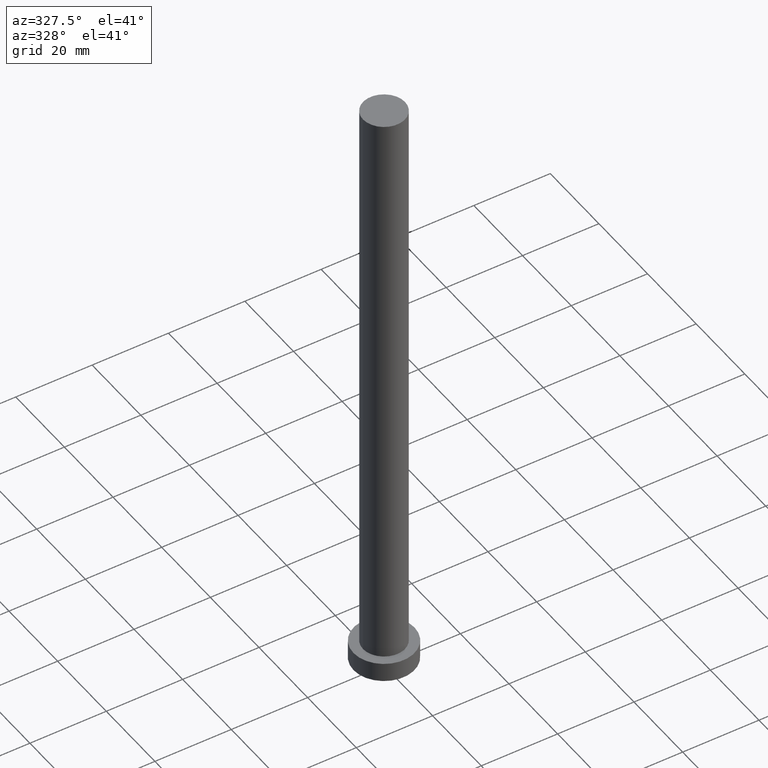
[diagram: clean part render]
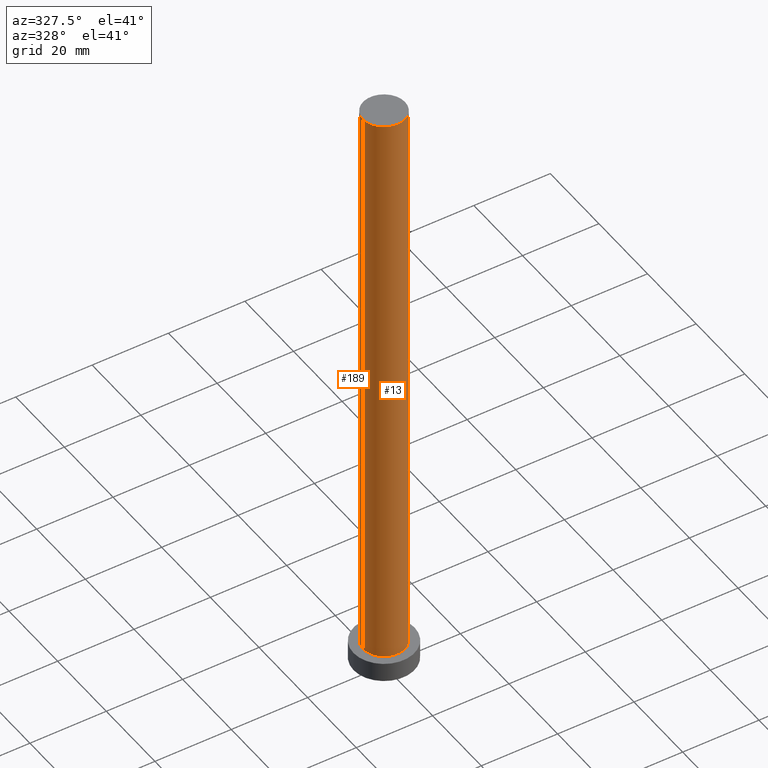
[diagram: same view with one multi-face feature highlighted, each face labeled with its STEP entity id]
A machine part, auxiliary view. The highlighted faces form ONE feature: a constant-radius fillet chain: 2 tangent blend faces with common blend radius 5.5 mm. The faces share edges in the B-rep.
Their STEP definitions:
[1] entity #189 (Cylinder):
#1 = VECTOR ( 'NONE', #64, 1000.000000000000000 ) ;
#2 = CARTESIAN_POINT ( 'NONE',  ( 0.000000000000000000, 0.000000000000000000, 160.0000000000000000 ) ) ;
#5 = CYLINDRICAL_SURFACE ( 'NONE', #35, 5.500000000000000000 ) ;
#21 = DIRECTION ( 'NONE',  ( 1.000000000000000000, 0.000000000000000000, 0.000000000000000000 ) ) ;
#28 = CIRCLE ( 'NONE', #96, 5.500000000000000000 ) ;
#32 = VERTEX_POINT ( 'NONE', #129 ) ;
#35 = AXIS2_PLACEMENT_3D ( 'NONE', #81, #195, #128 ) ;
#36 = VERTEX_POINT ( 'NONE', #100 ) ;
#43 = DIRECTION ( 'NONE',  ( 0.000000000000000000, 0.000000000000000000, 1.000000000000000000 ) ) ;
#62 = DIRECTION ( 'NONE',  ( 1.000000000000000000, 0.000000000000000000, 0.000000000000000000 ) ) ;
#64 = DIRECTION ( 'NONE',  ( -0.000000000000000000, -0.000000000000000000, -1.000000000000000000 ) ) ;
#71 = CARTESIAN_POINT ( 'NONE',  ( -5.500000000000000000, 0.000000000000000000, 160.0000000000000000 ) ) ;
#75 = VERTEX_POINT ( 'NONE', #179 ) ;
#81 = CARTESIAN_POINT ( 'NONE',  ( 0.000000000000000000, 0.000000000000000000, 160.0000000000000000 ) ) ;
#82 = EDGE_CURVE ( 'NONE', #36, #140, #199, .T. ) ;
#90 = EDGE_LOOP ( 'NONE', ( #93, #108, #121, #248 ) ) ;
#93 = ORIENTED_EDGE ( 'NONE', *, *, #114, .F. ) ;
#96 = AXIS2_PLACEMENT_3D ( 'NONE', #2, #200, #21 ) ;
#100 = CARTESIAN_POINT ( 'NONE',  ( 5.500000000000000000, 6.735557395310442023E-16, 5.000000000000000000 ) ) ;
#108 = ORIENTED_EDGE ( 'NONE', *, *, #172, .T. ) ;
#114 = EDGE_CURVE ( 'NONE', #75, #32, #28, .T. ) ;
#118 = VECTOR ( 'NONE', #160, 1000.000000000000000 ) ;
#121 = ORIENTED_EDGE ( 'NONE', *, *, #82, .T. ) ;
#128 = DIRECTION ( 'NONE',  ( -1.000000000000000000, 0.000000000000000000, 0.000000000000000000 ) ) ;
#129 = CARTESIAN_POINT ( 'NONE',  ( -5.500000000000000000, 0.000000000000000000, 160.0000000000000000 ) ) ;
#140 = VERTEX_POINT ( 'NONE', #241 ) ;
#157 = CARTESIAN_POINT ( 'NONE',  ( 5.500000000000000000, 6.735557395310442023E-16, 160.0000000000000000 ) ) ;
#160 = DIRECTION ( 'NONE',  ( -0.000000000000000000, -0.000000000000000000, -1.000000000000000000 ) ) ;
#172 = EDGE_CURVE ( 'NONE', #75, #36, #217, .T. ) ;
#176 = CARTESIAN_POINT ( 'NONE',  ( 0.000000000000000000, 0.000000000000000000, 5.000000000000000000 ) ) ;
#179 = CARTESIAN_POINT ( 'NONE',  ( 5.500000000000000000, 6.735557395310442023E-16, 160.0000000000000000 ) ) ;
#182 = FACE_OUTER_BOUND ( 'NONE', #90, .T. ) ;
#187 = LINE ( 'NONE', #71, #118 ) ;
#189 = ADVANCED_FACE ( 'NONE', ( #182 ), #5, .T. ) ;
#195 = DIRECTION ( 'NONE',  ( -0.000000000000000000, -0.000000000000000000, -1.000000000000000000 ) ) ;
#199 = CIRCLE ( 'NONE', #230, 5.500000000000000000 ) ;
#200 = DIRECTION ( 'NONE',  ( 0.000000000000000000, 0.000000000000000000, 1.000000000000000000 ) ) ;
#217 = LINE ( 'NONE', #157, #1 ) ;
#223 = EDGE_CURVE ( 'NONE', #32, #140, #187, .T. ) ;
#230 = AXIS2_PLACEMENT_3D ( 'NONE', #176, #43, #62 ) ;
#241 = CARTESIAN_POINT ( 'NONE',  ( -5.500000000000000000, 0.000000000000000000, 5.000000000000000000 ) ) ;
#248 = ORIENTED_EDGE ( 'NONE', *, *, #223, .F. ) ;
[2] entity #13 (Cylinder):
#1 = VECTOR ( 'NONE', #64, 1000.000000000000000 ) ;
#13 = ADVANCED_FACE ( 'NONE', ( #50 ), #232, .T. ) ;
#17 = EDGE_LOOP ( 'NONE', ( #193, #122, #112, #94 ) ) ;
#27 = DIRECTION ( 'NONE',  ( 1.000000000000000000, 0.000000000000000000, 0.000000000000000000 ) ) ;
#32 = VERTEX_POINT ( 'NONE', #129 ) ;
#36 = VERTEX_POINT ( 'NONE', #100 ) ;
#42 = DIRECTION ( 'NONE',  ( 0.000000000000000000, 0.000000000000000000, 1.000000000000000000 ) ) ;
#50 = FACE_OUTER_BOUND ( 'NONE', #17, .T. ) ;
#51 = EDGE_CURVE ( 'NONE', #32, #75, #70, .T. ) ;
#58 = CARTESIAN_POINT ( 'NONE',  ( 0.000000000000000000, 0.000000000000000000, 160.0000000000000000 ) ) ;
#64 = DIRECTION ( 'NONE',  ( -0.000000000000000000, -0.000000000000000000, -1.000000000000000000 ) ) ;
#68 = DIRECTION ( 'NONE',  ( 0.000000000000000000, 0.000000000000000000, 1.000000000000000000 ) ) ;
#70 = CIRCLE ( 'NONE', #243, 5.500000000000000000 ) ;
#71 = CARTESIAN_POINT ( 'NONE',  ( -5.500000000000000000, 0.000000000000000000, 160.0000000000000000 ) ) ;
#75 = VERTEX_POINT ( 'NONE', #179 ) ;
#83 = AXIS2_PLACEMENT_3D ( 'NONE', #164, #68, #27 ) ;
#87 = CIRCLE ( 'NONE', #83, 5.500000000000000000 ) ;
#94 = ORIENTED_EDGE ( 'NONE', *, *, #247, .T. ) ;
#99 = DIRECTION ( 'NONE',  ( -1.000000000000000000, 0.000000000000000000, 0.000000000000000000 ) ) ;
#100 = CARTESIAN_POINT ( 'NONE',  ( 5.500000000000000000, 6.735557395310442023E-16, 5.000000000000000000 ) ) ;
#105 = CARTESIAN_POINT ( 'NONE',  ( 0.000000000000000000, 0.000000000000000000, 160.0000000000000000 ) ) ;
#112 = ORIENTED_EDGE ( 'NONE', *, *, #223, .T. ) ;
#118 = VECTOR ( 'NONE', #160, 1000.000000000000000 ) ;
#122 = ORIENTED_EDGE ( 'NONE', *, *, #51, .F. ) ;
#129 = CARTESIAN_POINT ( 'NONE',  ( -5.500000000000000000, 0.000000000000000000, 160.0000000000000000 ) ) ;
#140 = VERTEX_POINT ( 'NONE', #241 ) ;
#157 = CARTESIAN_POINT ( 'NONE',  ( 5.500000000000000000, 6.735557395310442023E-16, 160.0000000000000000 ) ) ;
#158 = AXIS2_PLACEMENT_3D ( 'NONE', #58, #159, #99 ) ;
#159 = DIRECTION ( 'NONE',  ( -0.000000000000000000, -0.000000000000000000, -1.000000000000000000 ) ) ;
#160 = DIRECTION ( 'NONE',  ( -0.000000000000000000, -0.000000000000000000, -1.000000000000000000 ) ) ;
#164 = CARTESIAN_POINT ( 'NONE',  ( 0.000000000000000000, 0.000000000000000000, 5.000000000000000000 ) ) ;
#172 = EDGE_CURVE ( 'NONE', #75, #36, #217, .T. ) ;
#175 = DIRECTION ( 'NONE',  ( 1.000000000000000000, 0.000000000000000000, 0.000000000000000000 ) ) ;
#179 = CARTESIAN_POINT ( 'NONE',  ( 5.500000000000000000, 6.735557395310442023E-16, 160.0000000000000000 ) ) ;
#187 = LINE ( 'NONE', #71, #118 ) ;
#193 = ORIENTED_EDGE ( 'NONE', *, *, #172, .F. ) ;
#217 = LINE ( 'NONE', #157, #1 ) ;
#223 = EDGE_CURVE ( 'NONE', #32, #140, #187, .T. ) ;
#232 = CYLINDRICAL_SURFACE ( 'NONE', #158, 5.500000000000000000 ) ;
#241 = CARTESIAN_POINT ( 'NONE',  ( -5.500000000000000000, 0.000000000000000000, 5.000000000000000000 ) ) ;
#243 = AXIS2_PLACEMENT_3D ( 'NONE', #105, #42, #175 ) ;
#247 = EDGE_CURVE ( 'NONE', #140, #36, #87, .T. ) ;